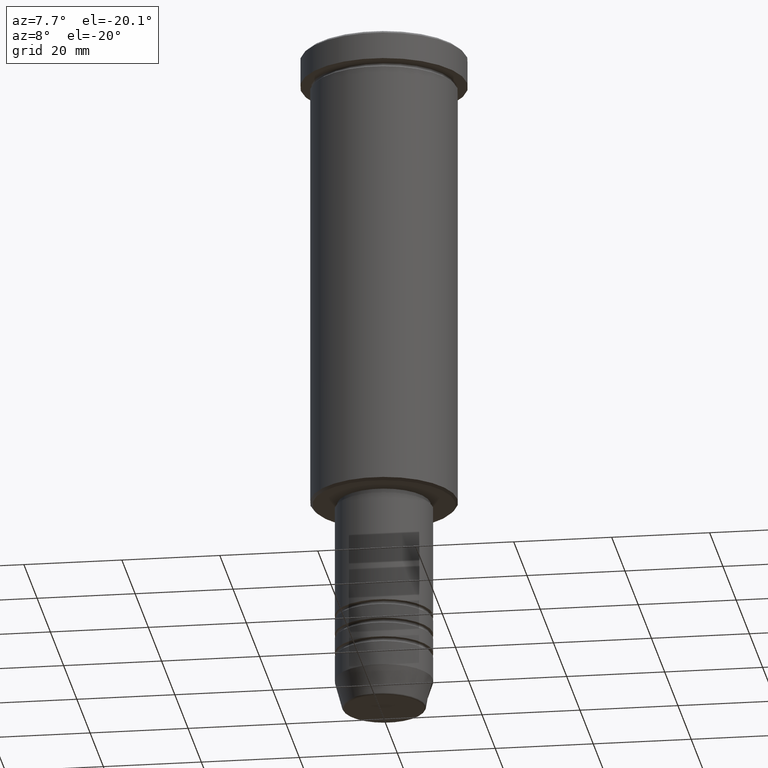
[diagram: clean part render]
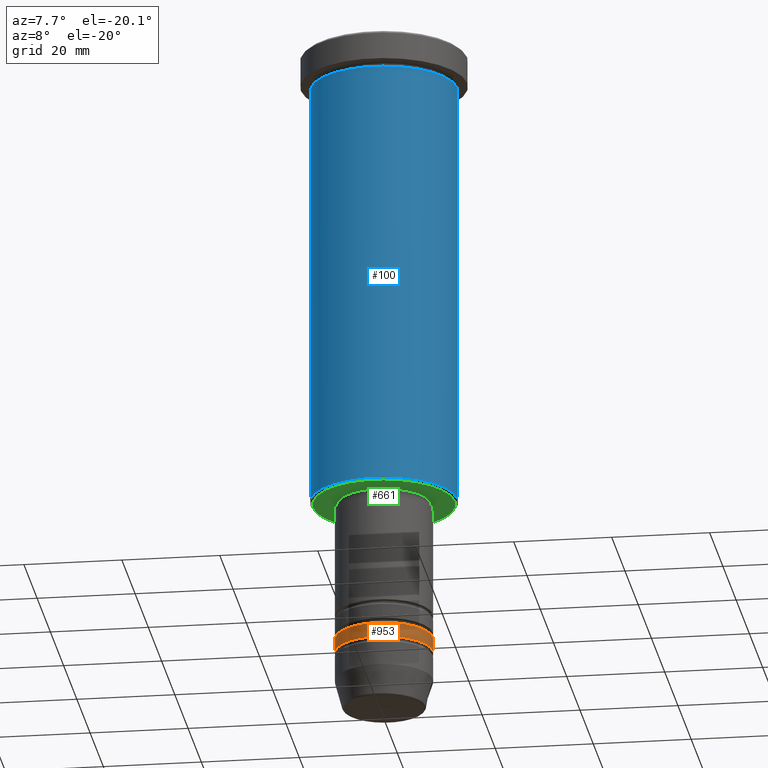
[diagram: same view with three faces highlighted in distinct colors, each labeled with its STEP entity id]
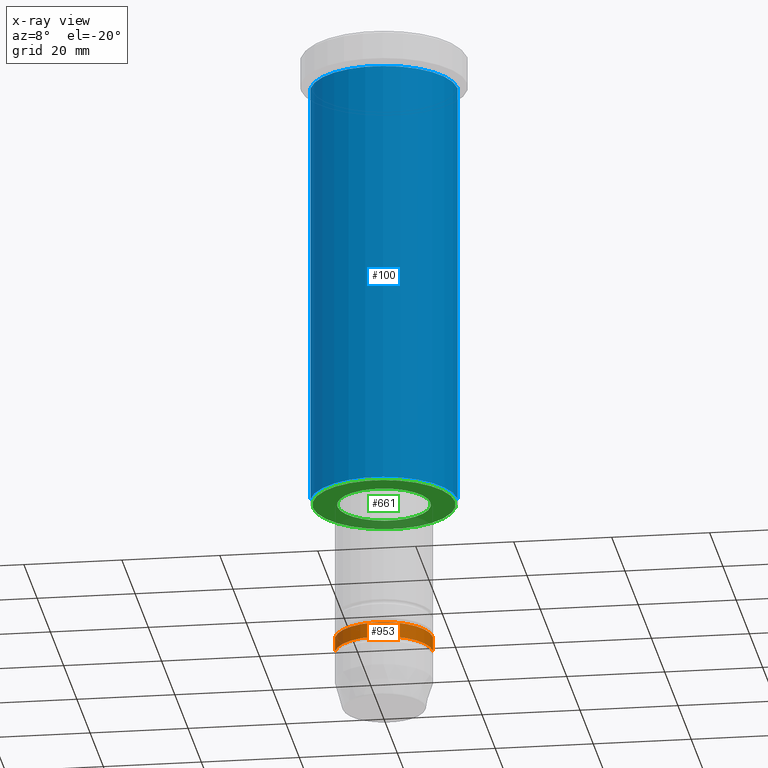
[diagram: x-ray of the same camera — body ghosted, the three highlighted faces saturated]
A machine part, auxiliary view with three faces highlighted in distinct colors.
The next image is the same camera in x-ray (body ghosted, the three faces saturated) — at least one of them is partly hidden behind the body in this view.
Their STEP definitions:

[orange] entity #953 — the highlighted cylindrical surface (partial cylindrical patch) has radius 10 mm, axis along (-0, -0, 1).
#17 = VERTEX_POINT ( 'NONE', #432 ) ;
#19 = CARTESIAN_POINT ( 'NONE',  ( 10.00000000000000178, 0.000000000000000000, 0.000000000000000000 ) ) ;
#104 = VERTEX_POINT ( 'NONE', #370 ) ;
#112 = EDGE_CURVE ( 'NONE', #104, #17, #171, .T. ) ;
#171 = CIRCLE ( 'NONE', #746, 10.00000000000000178 ) ;
#200 = DIRECTION ( 'NONE',  ( 1.000000000000000000, 0.000000000000000000, 0.000000000000000000 ) ) ;
#209 = AXIS2_PLACEMENT_3D ( 'NONE', #696, #901, #342 ) ;
#210 = DIRECTION ( 'NONE',  ( -0.000000000000000000, -0.000000000000000000, 1.000000000000000000 ) ) ;
#217 = CARTESIAN_POINT ( 'NONE',  ( -10.00000000000000178, 1.224646799147353454E-15, 0.000000000000000000 ) ) ;
#262 = ORIENTED_EDGE ( 'NONE', *, *, #1133, .F. ) ;
#326 = ORIENTED_EDGE ( 'NONE', *, *, #112, .T. ) ;
#328 = DIRECTION ( 'NONE',  ( -0.000000000000000000, -0.000000000000000000, 1.000000000000000000 ) ) ;
#342 = DIRECTION ( 'NONE',  ( 1.000000000000000000, 0.000000000000000000, 0.000000000000000000 ) ) ;
#348 = EDGE_LOOP ( 'NONE', ( #262, #326, #984, #521 ) ) ;
#370 = CARTESIAN_POINT ( 'NONE',  ( -10.00000000000000178, 1.224646799147353454E-15, -128.0000000000000000 ) ) ;
#372 = EDGE_CURVE ( 'NONE', #873, #540, #714, .T. ) ;
#432 = CARTESIAN_POINT ( 'NONE',  ( 10.00000000000000178, 0.000000000000000000, -128.0000000000000000 ) ) ;
#474 = CARTESIAN_POINT ( 'NONE',  ( 0.000000000000000000, 0.000000000000000000, -128.0000000000000000 ) ) ;
#513 = VECTOR ( 'NONE', #1118, 1000.000000000000000 ) ;
#521 = ORIENTED_EDGE ( 'NONE', *, *, #372, .F. ) ;
#533 = AXIS2_PLACEMENT_3D ( 'NONE', #646, #210, #720 ) ;
#535 = VECTOR ( 'NONE', #328, 1000.000000000000000 ) ;
#540 = VERTEX_POINT ( 'NONE', #682 ) ;
#542 = CARTESIAN_POINT ( 'NONE',  ( -10.00000000000000000, 1.224646799147353256E-15, -125.0000000000000000 ) ) ;
#554 = FACE_OUTER_BOUND ( 'NONE', #348, .T. ) ;
#607 = EDGE_CURVE ( 'NONE', #17, #540, #752, .T. ) ;
#646 = CARTESIAN_POINT ( 'NONE',  ( 0.000000000000000000, 0.000000000000000000, 0.000000000000000000 ) ) ;
#682 = CARTESIAN_POINT ( 'NONE',  ( 10.00000000000000000, 0.000000000000000000, -125.0000000000000000 ) ) ;
#696 = CARTESIAN_POINT ( 'NONE',  ( 0.000000000000000000, 0.000000000000000000, -125.0000000000000000 ) ) ;
#714 = CIRCLE ( 'NONE', #209, 10.00000000000000000 ) ;
#720 = DIRECTION ( 'NONE',  ( 1.000000000000000000, 0.000000000000000000, 0.000000000000000000 ) ) ;
#732 = DIRECTION ( 'NONE',  ( -0.000000000000000000, -0.000000000000000000, 1.000000000000000000 ) ) ;
#746 = AXIS2_PLACEMENT_3D ( 'NONE', #474, #732, #200 ) ;
#752 = LINE ( 'NONE', #19, #513 ) ;
#844 = CYLINDRICAL_SURFACE ( 'NONE', #533, 10.00000000000000178 ) ;
#873 = VERTEX_POINT ( 'NONE', #542 ) ;
#901 = DIRECTION ( 'NONE',  ( -0.000000000000000000, -0.000000000000000000, 1.000000000000000000 ) ) ;
#939 = LINE ( 'NONE', #217, #535 ) ;
#953 = ADVANCED_FACE ( 'NONE', ( #554 ), #844, .T. ) ;
#984 = ORIENTED_EDGE ( 'NONE', *, *, #607, .T. ) ;
#1118 = DIRECTION ( 'NONE',  ( -0.000000000000000000, -0.000000000000000000, 1.000000000000000000 ) ) ;
#1133 = EDGE_CURVE ( 'NONE', #104, #873, #939, .T. ) ;

[blue] entity #100 — the highlighted cylindrical surface (partial cylindrical patch) has radius 15 mm, axis along (-0, -0, 1).
#10 = AXIS2_PLACEMENT_3D ( 'NONE', #388, #749, #381 ) ;
#44 = EDGE_CURVE ( 'NONE', #113, #961, #47, .T. ) ;
#47 = CIRCLE ( 'NONE', #339, 15.00000000000000000 ) ;
#89 = CARTESIAN_POINT ( 'NONE',  ( 15.00000000000000000, 0.000000000000000000, -6.999999999999995559 ) ) ;
#100 = ADVANCED_FACE ( 'NONE', ( #115 ), #850, .T. ) ;
#113 = VERTEX_POINT ( 'NONE', #559 ) ;
#115 = FACE_OUTER_BOUND ( 'NONE', #671, .T. ) ;
#160 = VERTEX_POINT ( 'NONE', #1039 ) ;
#170 = ORIENTED_EDGE ( 'NONE', *, *, #586, .T. ) ;
#222 = DIRECTION ( 'NONE',  ( -0.000000000000000000, -0.000000000000000000, 1.000000000000000000 ) ) ;
#269 = DIRECTION ( 'NONE',  ( 1.000000000000000000, 0.000000000000000000, 0.000000000000000000 ) ) ;
#310 = ORIENTED_EDGE ( 'NONE', *, *, #44, .F. ) ;
#329 = EDGE_CURVE ( 'NONE', #160, #961, #561, .T. ) ;
#339 = AXIS2_PLACEMENT_3D ( 'NONE', #555, #352, #269 ) ;
#352 = DIRECTION ( 'NONE',  ( -0.000000000000000000, -0.000000000000000000, 1.000000000000000000 ) ) ;
#381 = DIRECTION ( 'NONE',  ( 1.000000000000000000, 0.000000000000000000, 0.000000000000000000 ) ) ;
#388 = CARTESIAN_POINT ( 'NONE',  ( 0.000000000000000000, 0.000000000000000000, 0.000000000000000000 ) ) ;
#390 = VECTOR ( 'NONE', #1000, 1000.000000000000000 ) ;
#407 = DIRECTION ( 'NONE',  ( -1.000000000000000000, 0.000000000000000000, 0.000000000000000000 ) ) ;
#421 = VECTOR ( 'NONE', #956, 1000.000000000000000 ) ;
#501 = VERTEX_POINT ( 'NONE', #1182 ) ;
#517 = CARTESIAN_POINT ( 'NONE',  ( 0.000000000000000000, 0.000000000000000000, -95.50000000000001421 ) ) ;
#543 = EDGE_CURVE ( 'NONE', #501, #113, #1059, .T. ) ;
#555 = CARTESIAN_POINT ( 'NONE',  ( 0.000000000000000000, 0.000000000000000000, -6.999999999999995559 ) ) ;
#559 = CARTESIAN_POINT ( 'NONE',  ( -15.00000000000000000, 1.836970198721029589E-15, -6.999999999999995559 ) ) ;
#561 = LINE ( 'NONE', #914, #390 ) ;
#577 = CARTESIAN_POINT ( 'NONE',  ( -15.00000000000000000, 1.836970198721029589E-15, 0.000000000000000000 ) ) ;
#581 = CIRCLE ( 'NONE', #1085, 15.00000000000000000 ) ;
#586 = EDGE_CURVE ( 'NONE', #501, #160, #581, .T. ) ;
#671 = EDGE_LOOP ( 'NONE', ( #677, #170, #739, #310 ) ) ;
#677 = ORIENTED_EDGE ( 'NONE', *, *, #543, .F. ) ;
#739 = ORIENTED_EDGE ( 'NONE', *, *, #329, .T. ) ;
#749 = DIRECTION ( 'NONE',  ( -0.000000000000000000, -0.000000000000000000, 1.000000000000000000 ) ) ;
#850 = CYLINDRICAL_SURFACE ( 'NONE', #10, 15.00000000000000000 ) ;
#914 = CARTESIAN_POINT ( 'NONE',  ( 15.00000000000000000, 0.000000000000000000, 0.000000000000000000 ) ) ;
#956 = DIRECTION ( 'NONE',  ( -0.000000000000000000, -0.000000000000000000, 1.000000000000000000 ) ) ;
#961 = VERTEX_POINT ( 'NONE', #89 ) ;
#1000 = DIRECTION ( 'NONE',  ( -0.000000000000000000, -0.000000000000000000, 1.000000000000000000 ) ) ;
#1039 = CARTESIAN_POINT ( 'NONE',  ( 15.00000000000000000, 0.000000000000000000, -95.50000000000001421 ) ) ;
#1059 = LINE ( 'NONE', #577, #421 ) ;
#1085 = AXIS2_PLACEMENT_3D ( 'NONE', #517, #222, #407 ) ;
#1182 = CARTESIAN_POINT ( 'NONE',  ( -15.00000000000000000, 1.836970198721029589E-15, -95.50000000000001421 ) ) ;

[green] entity #661 — the highlighted planar face has unit normal (0, 0, -1).
#56 = CARTESIAN_POINT ( 'NONE',  ( 0.000000000000000000, 15.00000000000000000, -96.00000000000000000 ) ) ;
#82 = CARTESIAN_POINT ( 'NONE',  ( 0.000000000000000000, 0.000000000000000000, -96.00000000000000000 ) ) ;
#98 = CARTESIAN_POINT ( 'NONE',  ( 14.50000000000001066, 0.000000000000000000, -96.00000000000000000 ) ) ;
#103 = ORIENTED_EDGE ( 'NONE', *, *, #504, .T. ) ;
#133 = ORIENTED_EDGE ( 'NONE', *, *, #716, .T. ) ;
#142 = CARTESIAN_POINT ( 'NONE',  ( 9.500000000000001776, 0.000000000000000000, -96.00000000000000000 ) ) ;
#156 = PLANE ( 'NONE',  #742 ) ;
#169 = AXIS2_PLACEMENT_3D ( 'NONE', #82, #691, #988 ) ;
#194 = CIRCLE ( 'NONE', #425, 9.500000000000001776 ) ;
#238 = EDGE_CURVE ( 'NONE', #550, #663, #194, .T. ) ;
#294 = CARTESIAN_POINT ( 'NONE',  ( 0.000000000000000000, 0.000000000000000000, -96.00000000000000000 ) ) ;
#330 = FACE_OUTER_BOUND ( 'NONE', #588, .T. ) ;
#360 = DIRECTION ( 'NONE',  ( 0.000000000000000000, 0.000000000000000000, -1.000000000000000000 ) ) ;
#371 = EDGE_LOOP ( 'NONE', ( #506, #576 ) ) ;
#373 = DIRECTION ( 'NONE',  ( -1.000000000000000000, 0.000000000000000000, -0.000000000000000000 ) ) ;
#425 = AXIS2_PLACEMENT_3D ( 'NONE', #433, #463, #648 ) ;
#433 = CARTESIAN_POINT ( 'NONE',  ( 0.000000000000000000, 0.000000000000000000, -96.00000000000000000 ) ) ;
#447 = CIRCLE ( 'NONE', #642, 9.500000000000001776 ) ;
#463 = DIRECTION ( 'NONE',  ( -0.000000000000000000, -0.000000000000000000, 1.000000000000000000 ) ) ;
#504 = EDGE_CURVE ( 'NONE', #584, #962, #1154, .T. ) ;
#506 = ORIENTED_EDGE ( 'NONE', *, *, #238, .T. ) ;
#537 = CARTESIAN_POINT ( 'NONE',  ( 0.000000000000000000, 0.000000000000000000, -96.00000000000000000 ) ) ;
#550 = VERTEX_POINT ( 'NONE', #142 ) ;
#576 = ORIENTED_EDGE ( 'NONE', *, *, #1007, .T. ) ;
#584 = VERTEX_POINT ( 'NONE', #893 ) ;
#588 = EDGE_LOOP ( 'NONE', ( #133, #103 ) ) ;
#642 = AXIS2_PLACEMENT_3D ( 'NONE', #294, #1027, #878 ) ;
#648 = DIRECTION ( 'NONE',  ( 1.000000000000000000, 0.000000000000000000, 0.000000000000000000 ) ) ;
#650 = DIRECTION ( 'NONE',  ( 0.000000000000000000, 0.000000000000000000, -1.000000000000000000 ) ) ;
#661 = ADVANCED_FACE ( 'NONE', ( #330, #1063 ), #156, .T. ) ;
#663 = VERTEX_POINT ( 'NONE', #764 ) ;
#672 = CIRCLE ( 'NONE', #169, 14.50000000000001066 ) ;
#691 = DIRECTION ( 'NONE',  ( 0.000000000000000000, 0.000000000000000000, -1.000000000000000000 ) ) ;
#716 = EDGE_CURVE ( 'NONE', #962, #584, #672, .T. ) ;
#742 = AXIS2_PLACEMENT_3D ( 'NONE', #56, #650, #373 ) ;
#764 = CARTESIAN_POINT ( 'NONE',  ( -9.500000000000001776, 1.163414459189985682E-15, -96.00000000000000000 ) ) ;
#878 = DIRECTION ( 'NONE',  ( 1.000000000000000000, 0.000000000000000000, 0.000000000000000000 ) ) ;
#893 = CARTESIAN_POINT ( 'NONE',  ( -14.50000000000001066, 1.806354028742346591E-15, -96.00000000000000000 ) ) ;
#945 = AXIS2_PLACEMENT_3D ( 'NONE', #537, #360, #1040 ) ;
#962 = VERTEX_POINT ( 'NONE', #98 ) ;
#988 = DIRECTION ( 'NONE',  ( -1.000000000000000000, 0.000000000000000000, 0.000000000000000000 ) ) ;
#1007 = EDGE_CURVE ( 'NONE', #663, #550, #447, .T. ) ;
#1027 = DIRECTION ( 'NONE',  ( -0.000000000000000000, -0.000000000000000000, 1.000000000000000000 ) ) ;
#1040 = DIRECTION ( 'NONE',  ( -1.000000000000000000, 0.000000000000000000, 0.000000000000000000 ) ) ;
#1063 = FACE_BOUND ( 'NONE', #371, .T. ) ;
#1154 = CIRCLE ( 'NONE', #945, 14.50000000000001066 ) ;